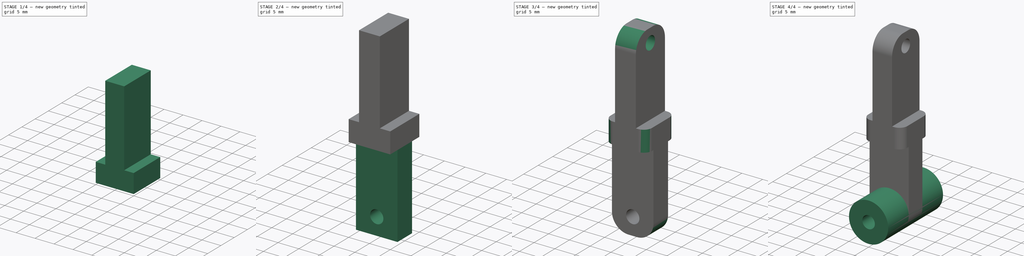
[diagram: build sequence overview — one tinted view per stage of 4, left to right]
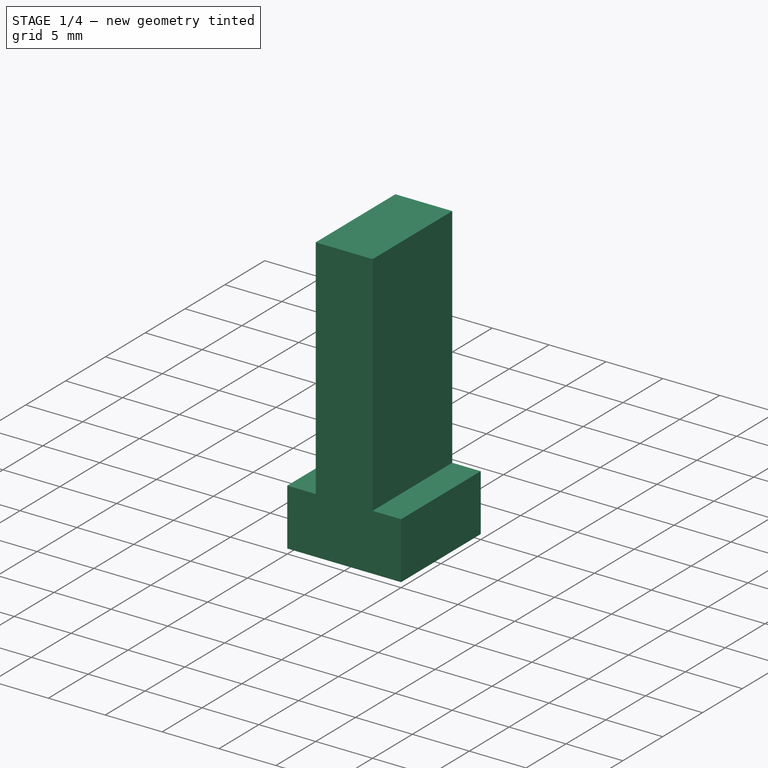
[diagram: stage 1 of 4 — iso view after this stage's code; geometry added in this stage tinted green]
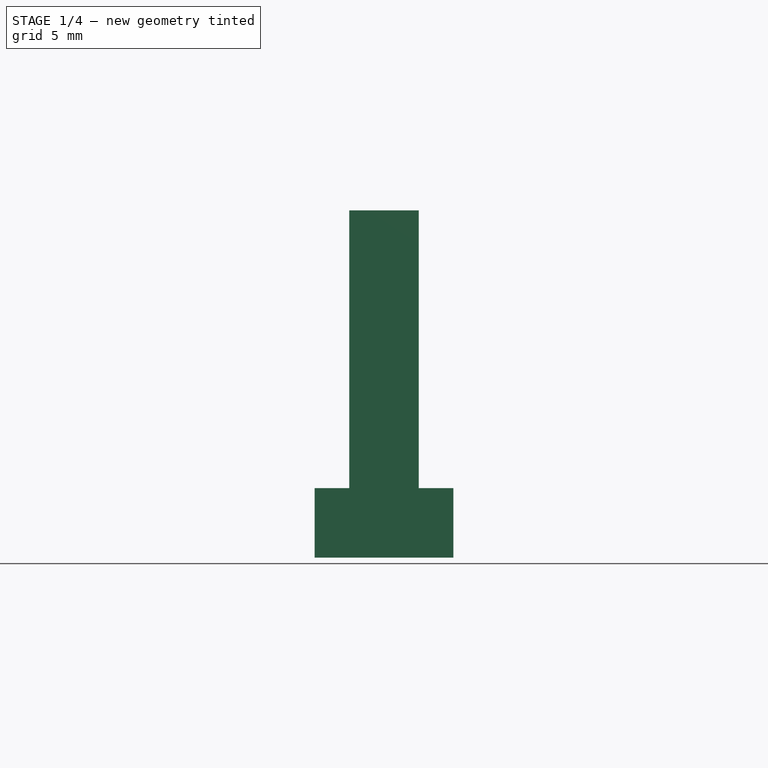
[diagram: stage 1 of 4 — front view after this stage's code; geometry added in this stage tinted green]
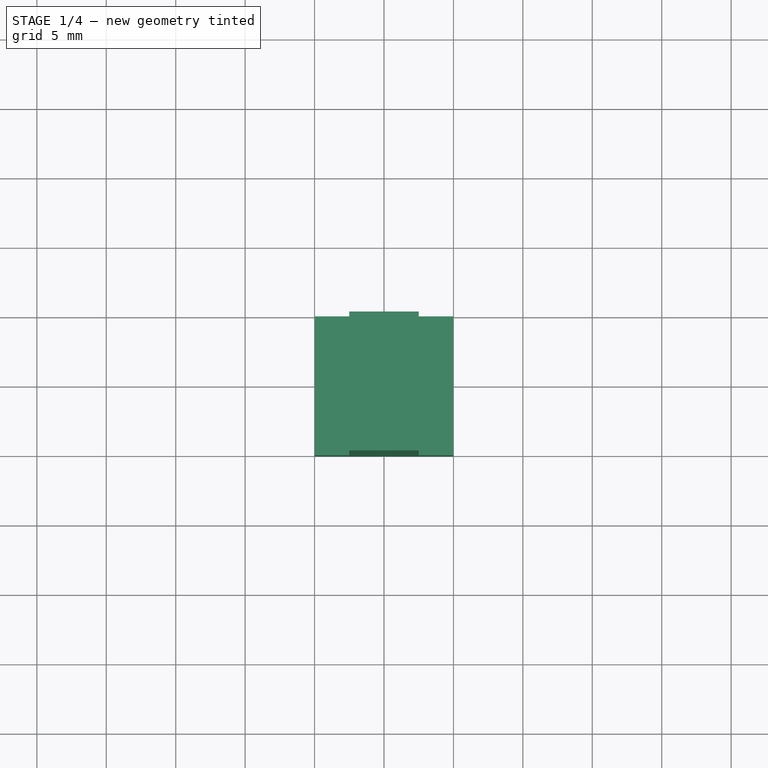
[diagram: stage 1 of 4 — top view after this stage's code; geometry added in this stage tinted green]
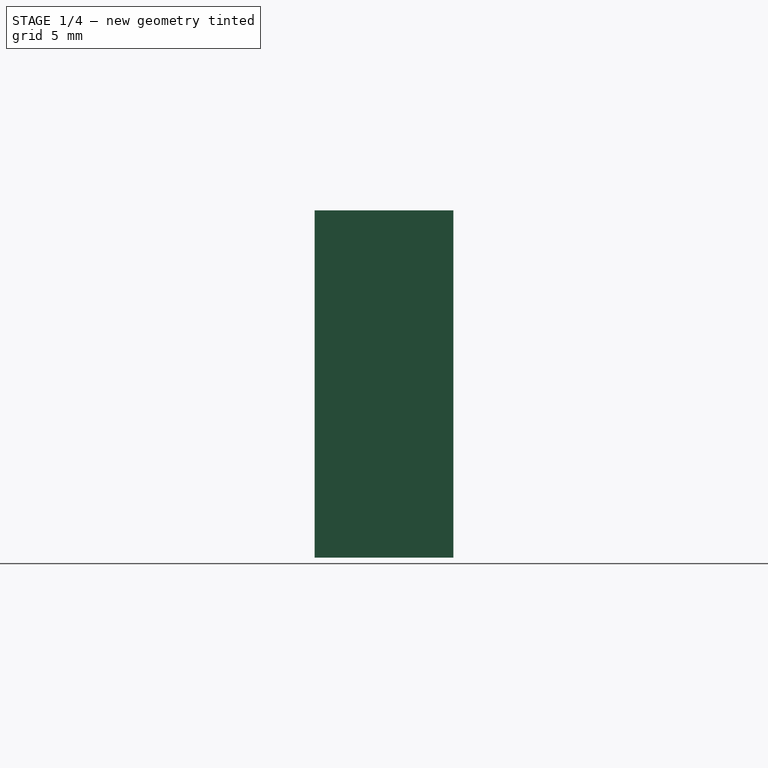
[diagram: stage 1 of 4 — right view after this stage's code; geometry added in this stage tinted green]
FCSTD DOCUMENT  (FreeCAD 0.19R24291 (Git))
Label: CamMount_2
License: All rights reserved
LicenseURL: http://en.wikipedia.org/wiki/All_rights_reserved
objects: Sketcher::SketchObject×8, PartDesign::Pad×4, PartDesign::Pocket×3, PartDesign::Fillet×2, PartDesign::Body×1
note: 27 computed .brp shape members not serialized (recipe doc carries the construction recipe); baked Part::Feature solids carry a one-line shape summary decoded from their .brp

FEATURE [Sketcher::SketchObject] Sketch
  FullyConstrained = true
  MapMode = 5
  Support = -> [XY_Plane]
  sketch-geometry (4):
    g0: LineSegment StartX=0 StartY=0 StartZ=0 EndX=-10 EndY=0 EndZ=0
    g1: LineSegment StartX=-10 StartY=0 StartZ=0 EndX=-10 EndY=10 EndZ=0
    g2: LineSegment StartX=-10 StartY=10 StartZ=0 EndX=0 EndY=10 EndZ=0
    g3: LineSegment StartX=0 StartY=10 StartZ=0 EndX=0 EndY=0 EndZ=0
  constraints (11):
    c: Coincident(g0,g1)
    c: Coincident(g1,g2)
    c: Coincident(g2,g3)
    c: Coincident(g3,g0)
    c: Horizontal(g0)
    c: Horizontal(g2)
    c: Vertical(g1)
    c: Vertical(g3)
    c: Coincident(g0,g-1)
    c: DistanceY(g1,g1) = 10
    c: DistanceX(g2,g2) = 10
FEATURE [PartDesign::Pad] Pad
  Direction = (1,1,1)
  Length = 5
  Length2 = 100
  Profile = -> Sketch
  Type = 0
FEATURE [Sketcher::SketchObject] Sketch001
  ExternalGeometry = -> [Pad]
  FullyConstrained = true
  MapMode = 5
  Placement = pos=(0,0,5) rot=(0,0,1;0rad)
  Support = -> [Pad]
  sketch-geometry (4):
    g0: LineSegment StartX=-2.5 StartY=0 StartZ=0 EndX=-7.5 EndY=0 EndZ=0
    g1: LineSegment StartX=-7.5 StartY=0 StartZ=0 EndX=-7.5 EndY=10 EndZ=0
    g2: LineSegment StartX=-7.5 StartY=10 StartZ=0 EndX=-2.5 EndY=10 EndZ=0
    g3: LineSegment StartX=-2.5 StartY=10 StartZ=0 EndX=-2.5 EndY=0 EndZ=0
  constraints (12):
    c: Coincident(g0,g1)
    c: Coincident(g1,g2)
    c: Coincident(g2,g3)
    c: Coincident(g3,g0)
    c: Horizontal(g0)
    c: Horizontal(g2)
    c: Vertical(g1)
    c: Vertical(g3)
    c: PointOnObject(g0,g-1)
    c: PointOnObject(g1,g-3)
    c: DistanceX(g0,g0) = 5
    c: Distance(g-1,g0) = 2.5
FEATURE [PartDesign::Pad] Pad001
  BaseFeature = -> Pad
  Direction = (1,1,1)
  Length = 20
  Length2 = 100
  Profile = -> Sketch001
  Type = 0
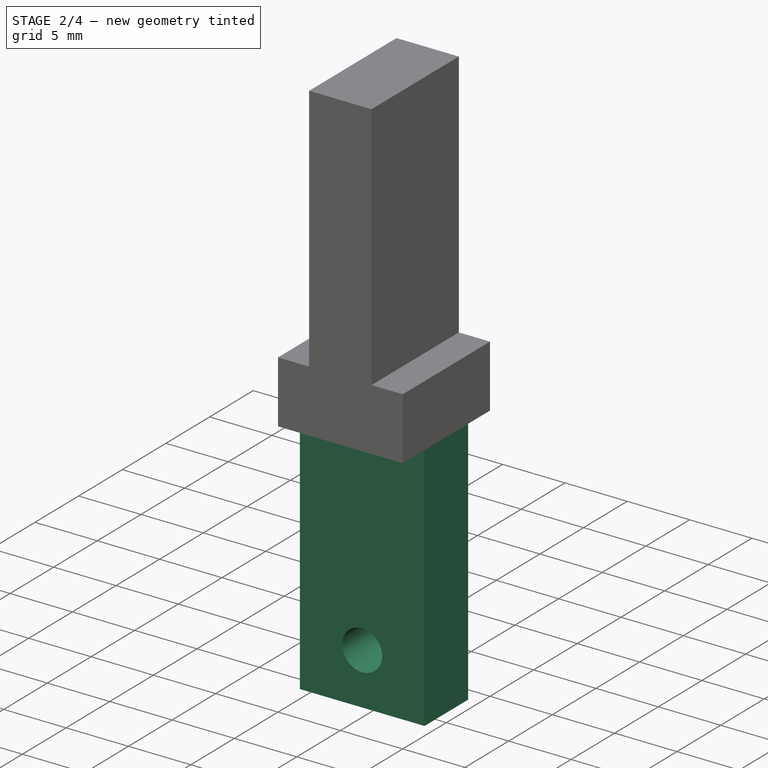
[diagram: stage 2 of 4 — iso view after this stage's code; geometry added in this stage tinted green]
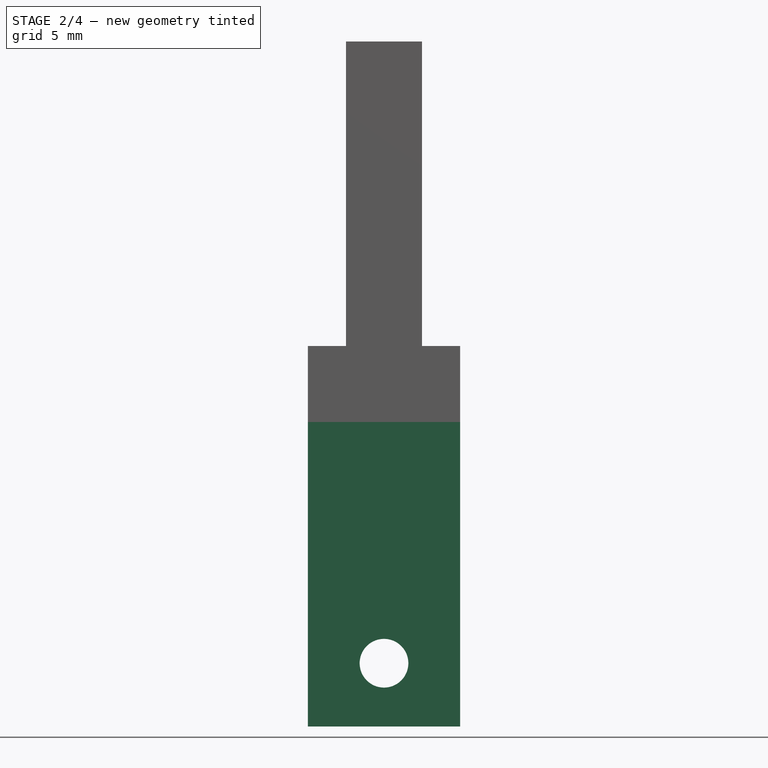
[diagram: stage 2 of 4 — front view after this stage's code; geometry added in this stage tinted green]
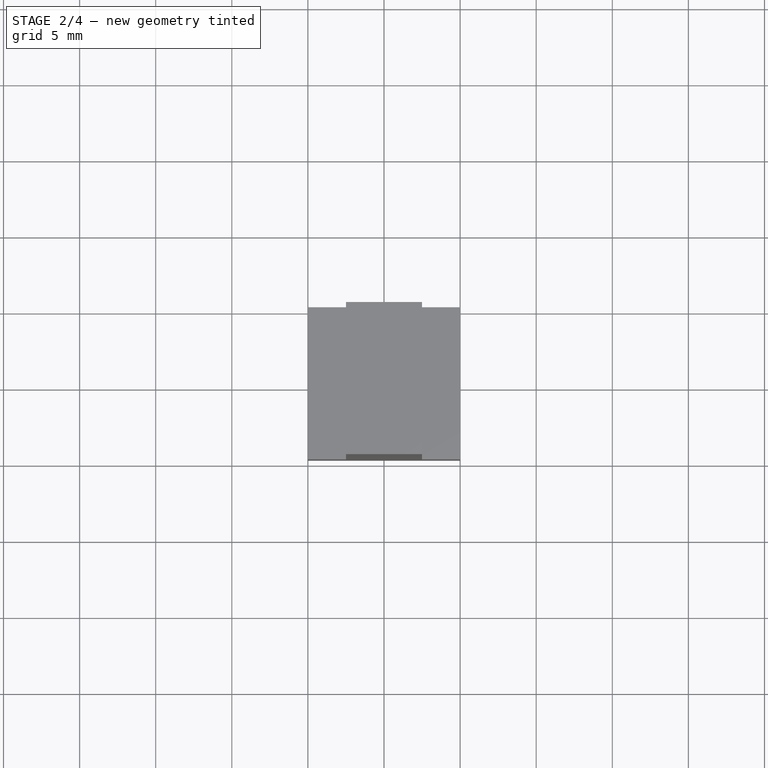
[diagram: stage 2 of 4 — top view after this stage's code; geometry added in this stage tinted green]
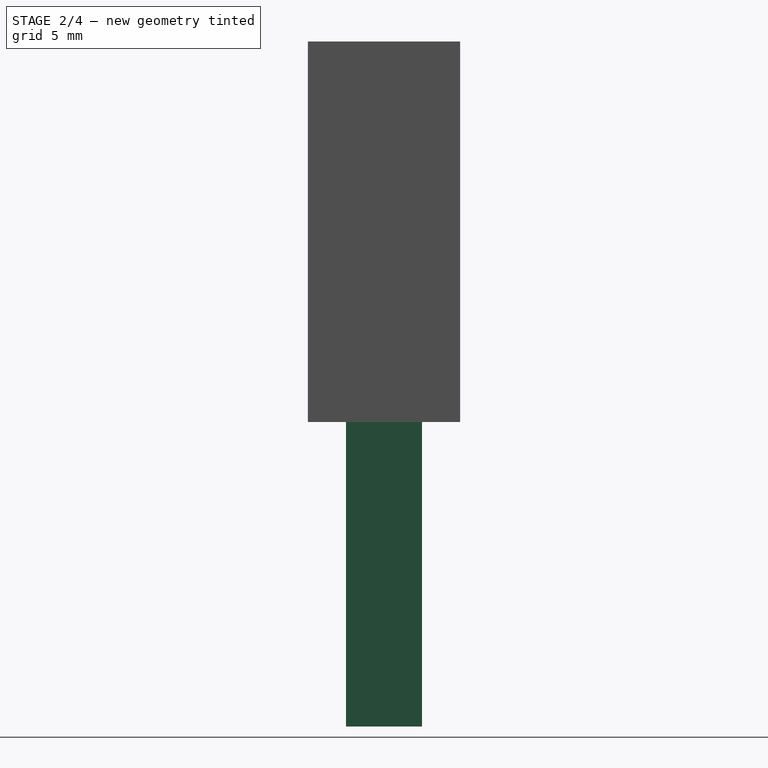
[diagram: stage 2 of 4 — right view after this stage's code; geometry added in this stage tinted green]
FEATURE [Sketcher::SketchObject] Sketch002
  ExternalGeometry = -> [Pad001]
  FullyConstrained = true
  MapMode = 5
  Placement = pos=(0,0,0) rot=(1,0,0;3.14159rad)
  Support = -> [Pad001]
  sketch-geometry (4):
    g0: LineSegment StartX=0 StartY=-7.5 StartZ=0 EndX=-10 EndY=-7.5 EndZ=0
    g1: LineSegment StartX=-10 StartY=-7.5 StartZ=0 EndX=-10 EndY=-2.5 EndZ=0
    g2: LineSegment StartX=-10 StartY=-2.5 StartZ=0 EndX=0 EndY=-2.5 EndZ=0
    g3: LineSegment StartX=0 StartY=-2.5 StartZ=0 EndX=0 EndY=-7.5 EndZ=0
  constraints (12):
    c: Coincident(g0,g1)
    c: Coincident(g1,g2)
    c: Coincident(g2,g3)
    c: Coincident(g3,g0)
    c: Horizontal(g0)
    c: Horizontal(g2)
    c: Vertical(g1)
    c: Vertical(g3)
    c: PointOnObject(g0,g-4)
    c: PointOnObject(g1,g-3)
    c: DistanceY(g1,g1) = 5
    c: Distance(g-5,g0) = 2.5
FEATURE [PartDesign::Pad] Pad002
  BaseFeature = -> Pad001
  Direction = (1,1,1)
  Length = 20
  Length2 = 100
  Profile = -> Sketch002
  Type = 0
FEATURE [Sketcher::SketchObject] Sketch003
  ExternalGeometry = -> [Pad002]
  FullyConstrained = true
  MapMode = 5
  Placement = pos=(0,7.5,0) rot=(0,0.707107,0.707107;3.14159rad)
  Support = -> [Pad002]
  sketch-geometry (3):
    g0: Circle CenterX=5 CenterY=-15.8467 CenterZ=0 NormalX=0 NormalY=0 NormalZ=1 AngleXU=0 Radius=1.6
    g1: LineSegment StartX=0 StartY=-20 StartZ=0 EndX=5 EndY=-15.8467 EndZ=0
    g2: LineSegment StartX=5 StartY=-15.8467 StartZ=0 EndX=10 EndY=-20 EndZ=0
  constraints (7):
    c: Radius(g0) = 1.6
    c: Coincident(g1,g-3)
    c: Coincident(g1,g0)
    c: Coincident(g2,g0)
    c: Coincident(g2,g-3)
    c: Equal(g2,g1)
    c: Distance(g2) = 6.5
FEATURE [PartDesign::Pocket] Pocket
  BaseFeature = -> Pad002
  Length = 5
  Length2 = 100
  Profile = -> Sketch003
  Type = 0
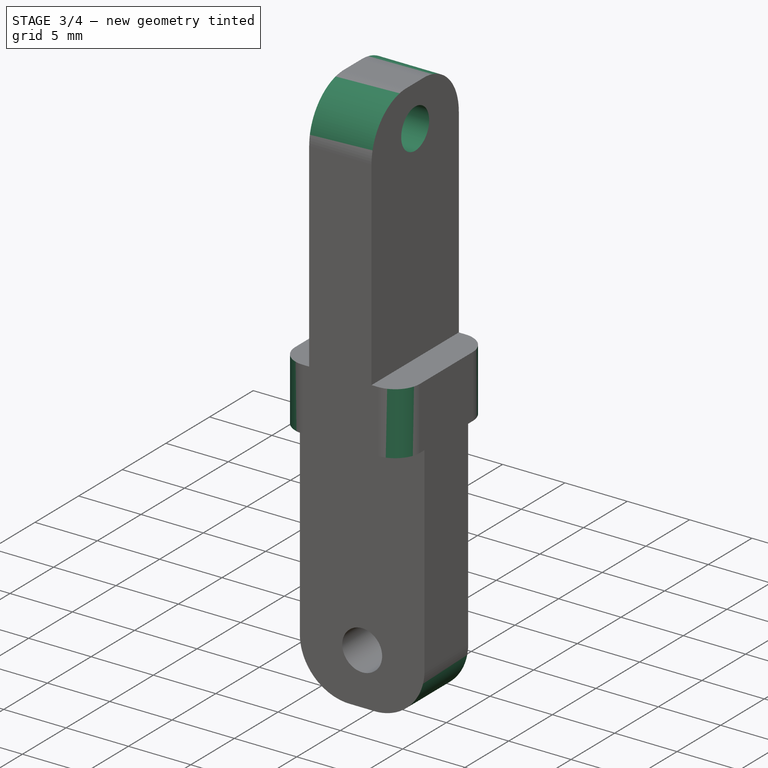
[diagram: stage 3 of 4 — iso view after this stage's code; geometry added in this stage tinted green]
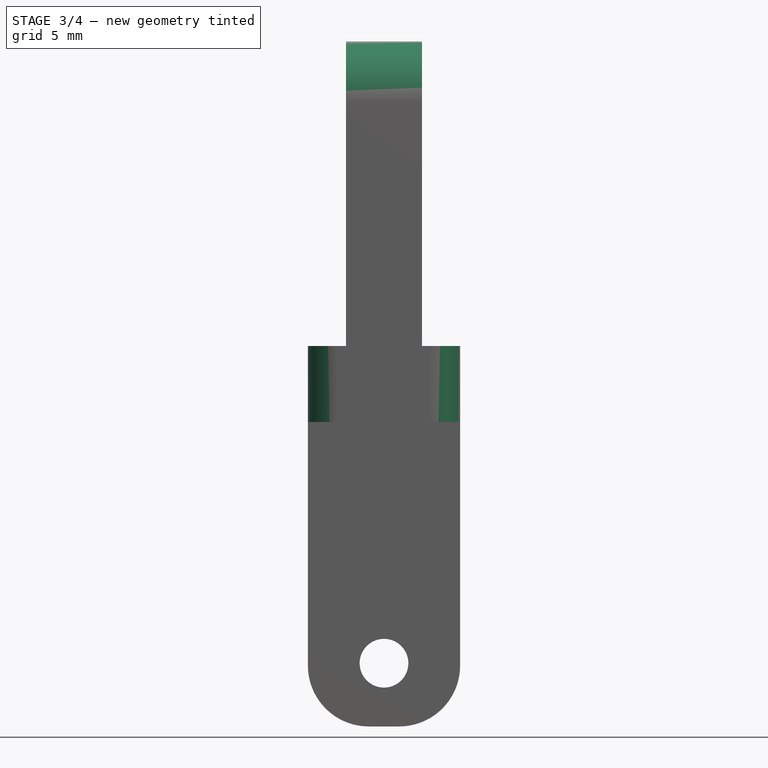
[diagram: stage 3 of 4 — front view after this stage's code; geometry added in this stage tinted green]
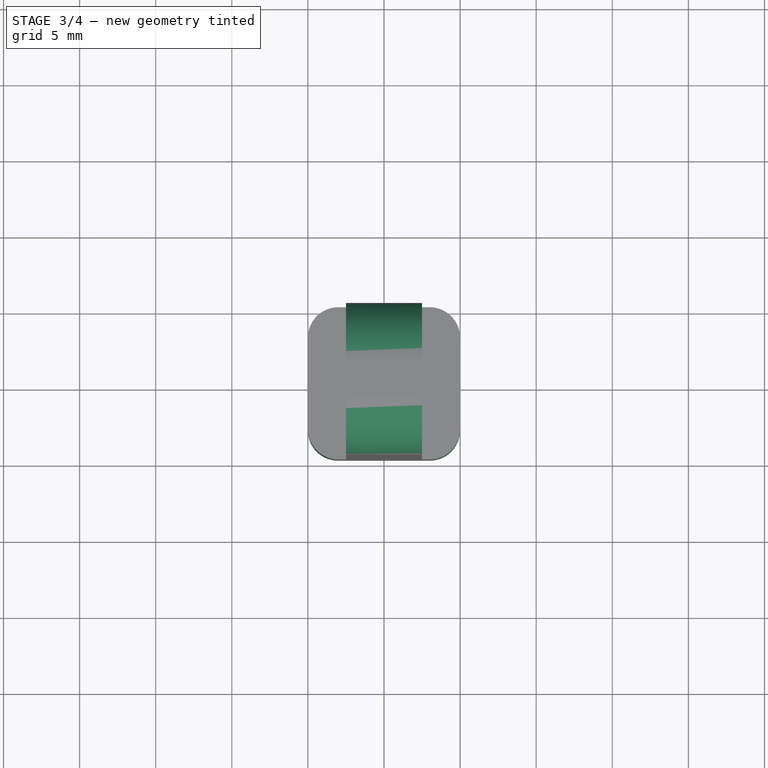
[diagram: stage 3 of 4 — top view after this stage's code; geometry added in this stage tinted green]
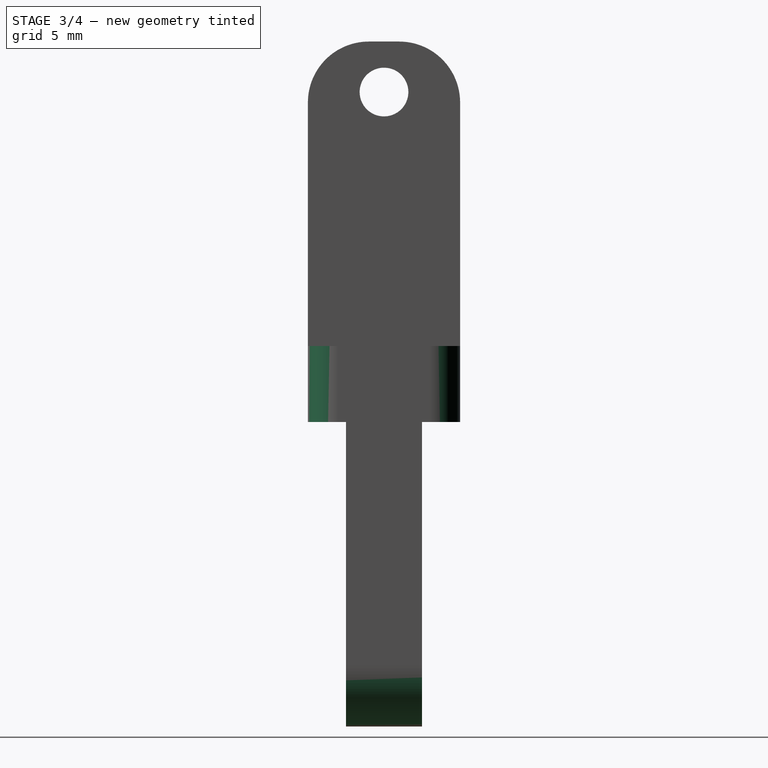
[diagram: stage 3 of 4 — right view after this stage's code; geometry added in this stage tinted green]
FEATURE [Sketcher::SketchObject] Sketch004
  ExternalGeometry = -> [Pocket]
  FullyConstrained = true
  MapMode = 5
  Placement = pos=(-7.5,0,0) rot=(0.57735,-0.57735,-0.57735;2.0944rad)
  Support = -> [Pocket]
  sketch-geometry (3):
    g0: LineSegment StartX=-10 StartY=25 StartZ=0 EndX=-5 EndY=21.6834 EndZ=0
    g1: LineSegment StartX=-5 StartY=21.6834 StartZ=0 EndX=0 EndY=25 EndZ=0
    g2: Circle CenterX=-5 CenterY=21.6834 CenterZ=0 NormalX=0 NormalY=0 NormalZ=1 AngleXU=0 Radius=1.6
  constraints (7):
    c: Coincident(g0,g-4)
    c: Coincident(g1,g0)
    c: Coincident(g1,g-4)
    c: Equal(g1,g0)
    c: Distance(g1) = 6
    c: Coincident(g2,g0)
    c: Radius(g2) = 1.6
FEATURE [PartDesign::Pocket] Pocket001
  BaseFeature = -> Pocket
  Length = 5
  Length2 = 100
  Profile = -> Sketch004
  Type = 1
FEATURE [PartDesign::Fillet] Fillet
  Base = -> Pocket001 [Edge33,Edge30,Edge42,Edge22]
  BaseFeature = -> Pocket001
  Radius = 4
  SupportTransform = false
FEATURE [PartDesign::Fillet] Fillet001
  Base = -> Fillet [Edge33,Edge14,Edge29,Edge13]
  BaseFeature = -> Fillet
  Radius = 2
  SupportTransform = false
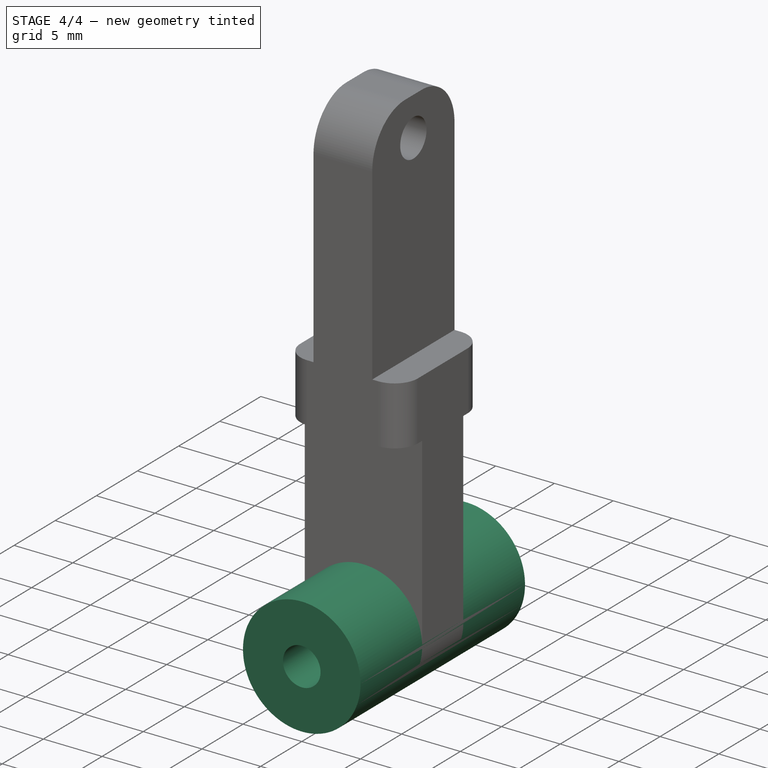
[diagram: stage 4 of 4 — iso view after this stage's code; geometry added in this stage tinted green]
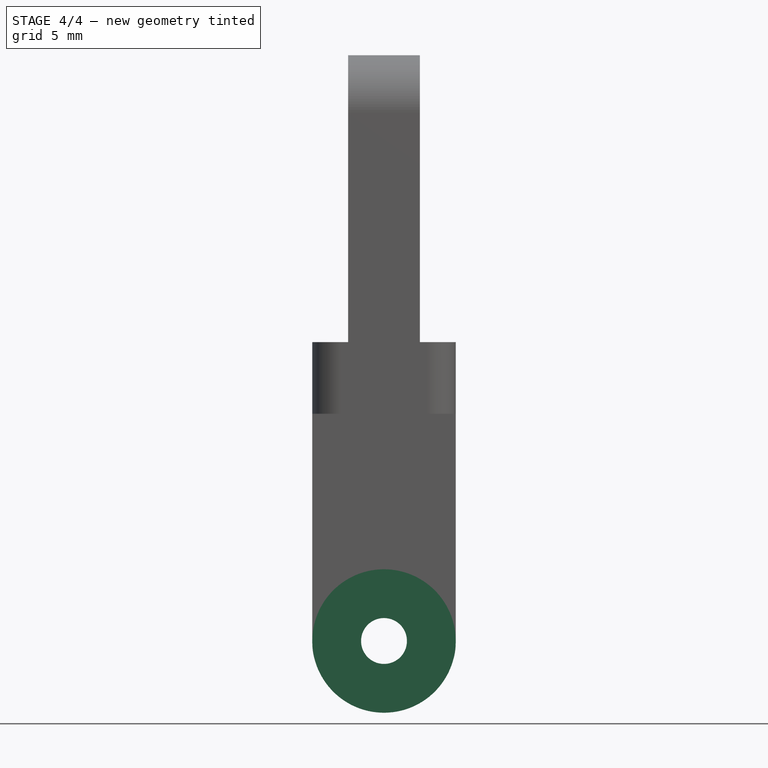
[diagram: stage 4 of 4 — front view after this stage's code; geometry added in this stage tinted green]
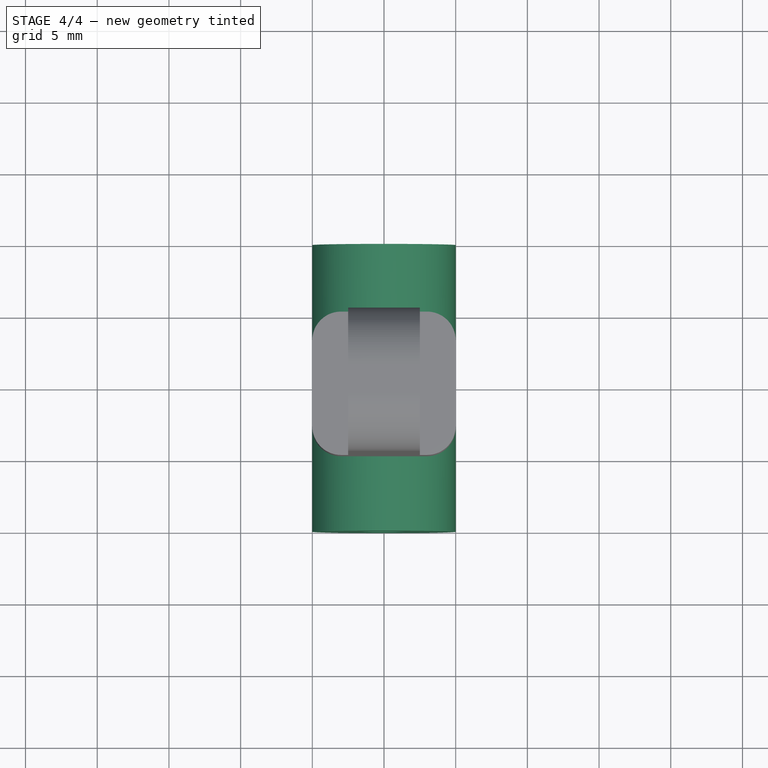
[diagram: stage 4 of 4 — top view after this stage's code; geometry added in this stage tinted green]
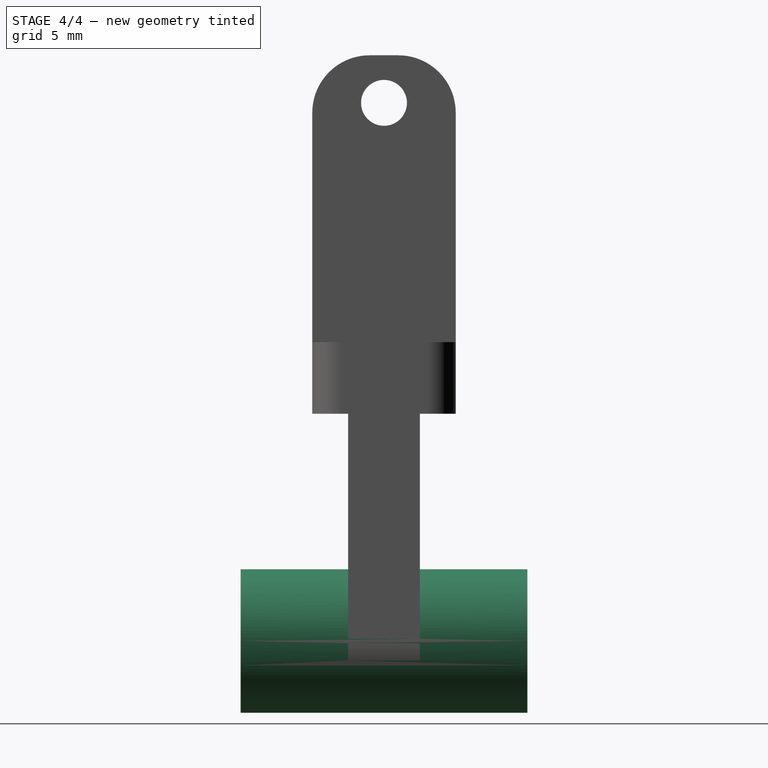
[diagram: stage 4 of 4 — right view after this stage's code; geometry added in this stage tinted green]
FEATURE [Sketcher::SketchObject] Sketch005
  FullyConstrained = true
  MapMode = 5
  Placement = pos=(0,2.5,0) rot=(1,0,0;1.5708rad)
  Support = -> [Fillet001]
FEATURE [Sketcher::SketchObject] Sketch006
  ExternalGeometry = -> [Fillet001]
  FullyConstrained = true
  MapMode = 5
  Placement = pos=(0,2.5,0) rot=(1,0,0;1.5708rad)
  Support = -> [Fillet001]
  sketch-geometry (1):
    g0: Circle CenterX=-5 CenterY=-15.8467 CenterZ=0 NormalX=0 NormalY=0 NormalZ=1 AngleXU=0 Radius=5.00235
  constraints (2):
    c: Coincident(g0,g-3)
    c: PointOnObject(g-4,g0)
FEATURE [PartDesign::Pad] Pad003
  BaseFeature = -> Fillet001
  Direction = (1,1,1)
  Length = 7.5
  Length2 = 12.5
  Profile = -> Sketch006
  Type = 4
FEATURE [Sketcher::SketchObject] Sketch007
  ExternalGeometry = -> [Pad003]
  FullyConstrained = true
  MapMode = 5
  Placement = pos=(0,-5,1e-15) rot=(1,0,0;1.5708rad)
  Support = -> [Pad003]
  sketch-geometry (1):
    g0: Circle CenterX=-5 CenterY=-15.8467 CenterZ=0 NormalX=0 NormalY=0 NormalZ=1 AngleXU=0 Radius=1.6
  constraints (2):
    c: Coincident(g0,g-3)
    c: Radius(g0) = 1.6
FEATURE [PartDesign::Pocket] Pocket002
  BaseFeature = -> Pad003
  Length = 5
  Length2 = 100
  Profile = -> Sketch007
  Type = 1
FEATURE [PartDesign::Body] Body
  Group = -> [Sketch,Pad,Sketch001,Pad001,Sketch002,Pad002,Sketch003,Pocket,Sketch004,Pocket001,Fillet,Fillet001,Sketch005,Sketch006,Pad003,Sketch007,Pocket002]
  Origin = -> Origin
  Tip = -> Pocket002
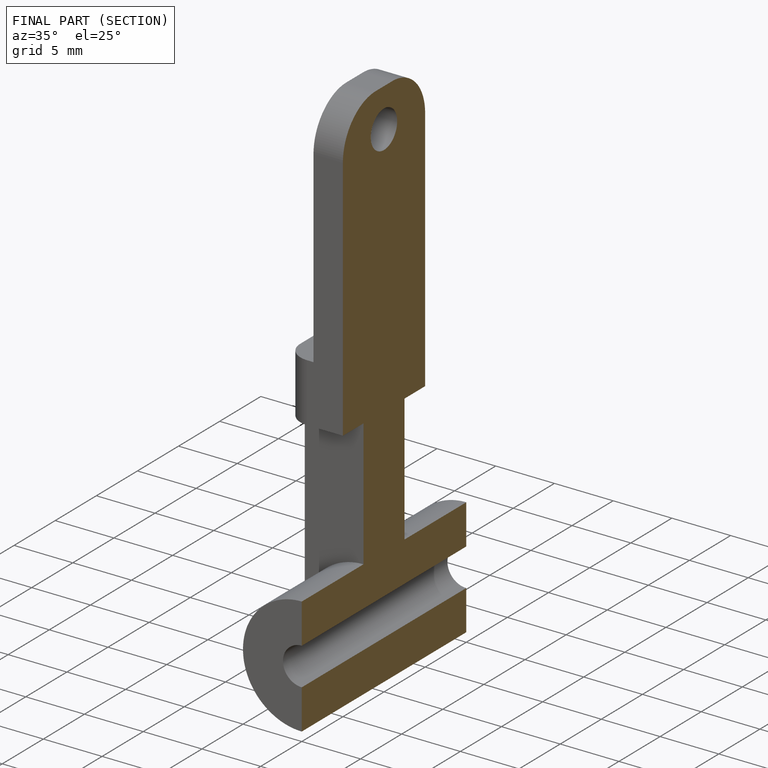
[diagram: finished part — half-section view (interior)]
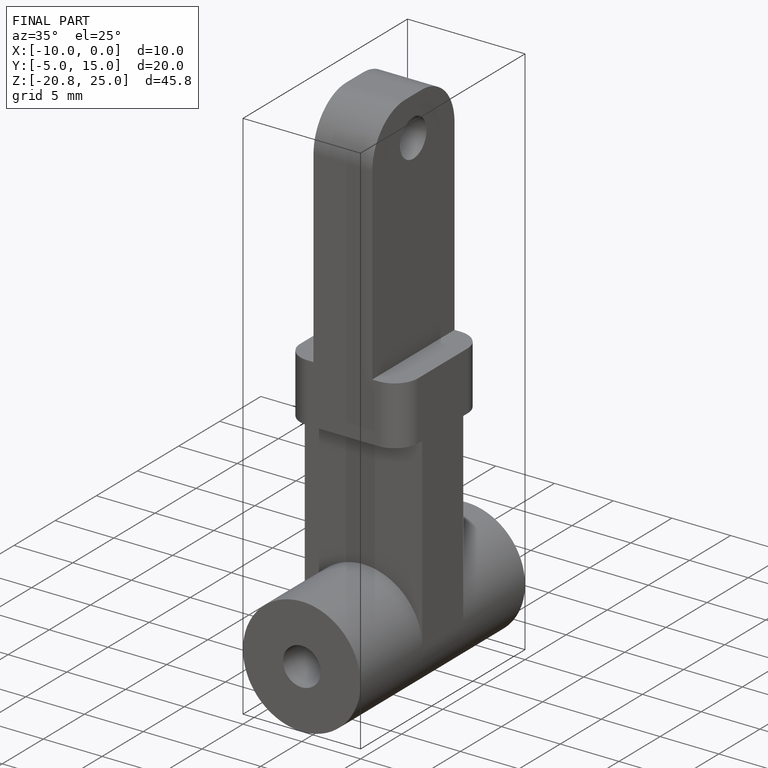
[diagram: finished part — iso view with bounding-box wireframe]
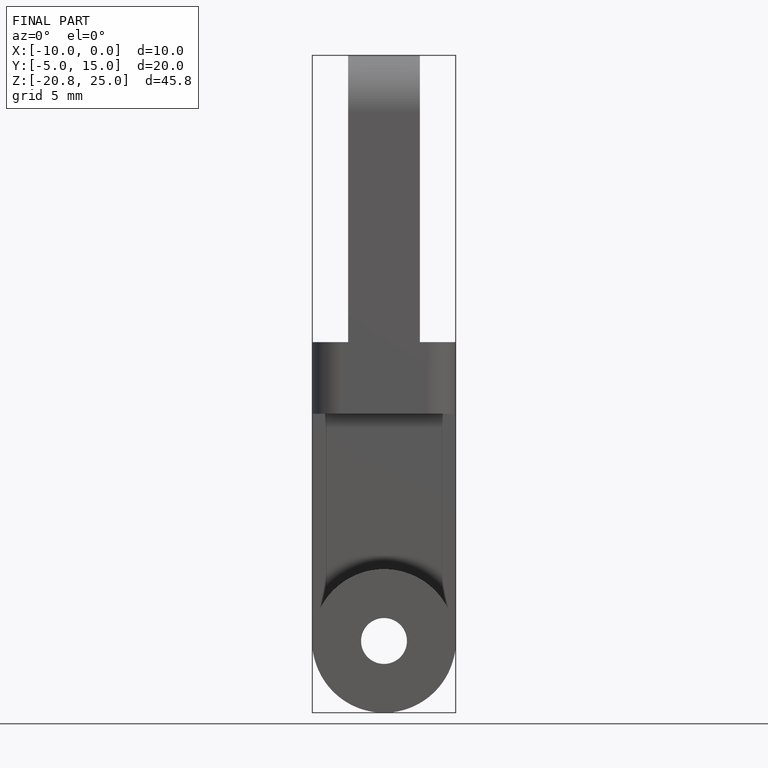
[diagram: finished part — front view with bounding-box wireframe]
